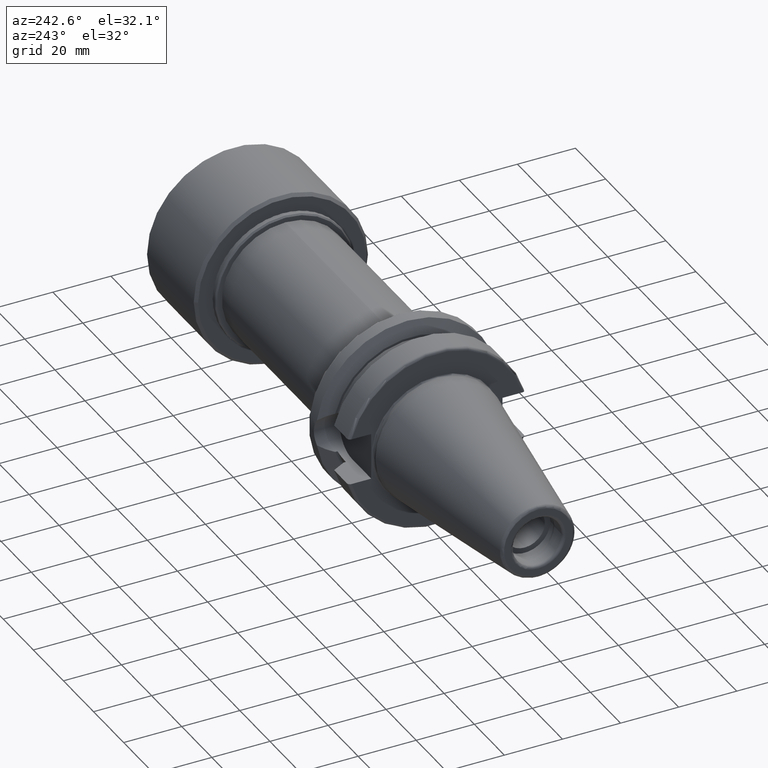
[diagram: clean part render]
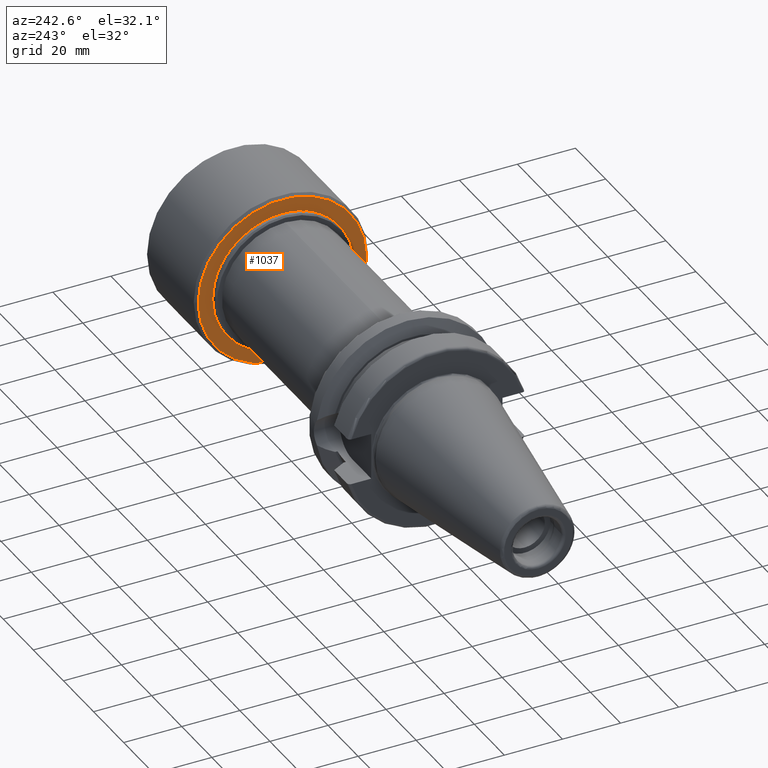
[diagram: same view with one face highlighted and labeled with its STEP entity id]
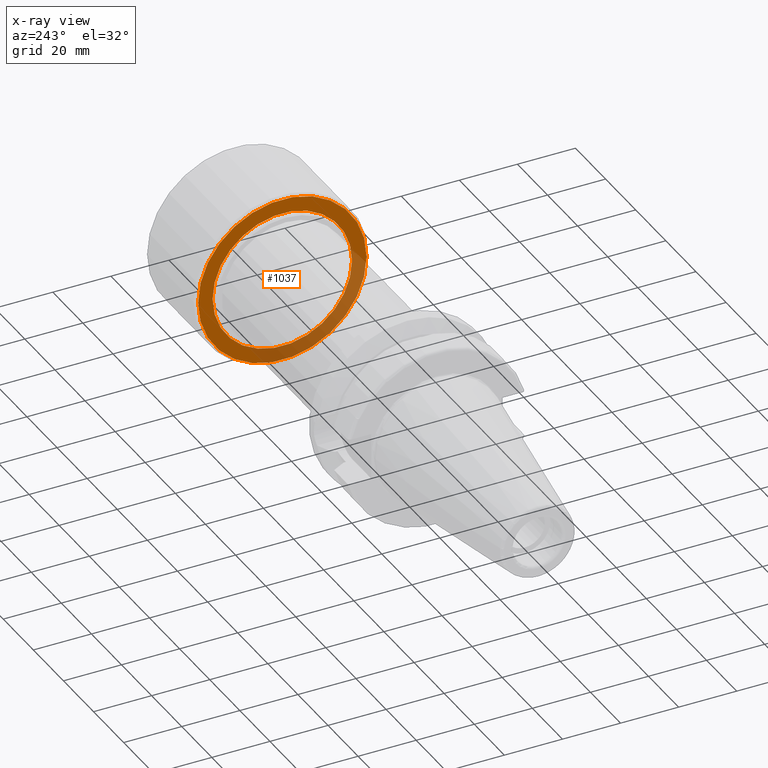
[diagram: x-ray of the same camera — body ghosted, the highlighted face saturated]
A machine part, auxiliary view. The second image highlights one B-rep face of the part: STEP entity #1037.
The next image is the same camera in x-ray: the body ghosted, the highlighted face saturated — about 31% of this face is hidden behind the body in this view.
In plain terms, the highlighted planar face has unit normal (-1, 0, 0).
Its self-contained STEP definition (entity closure, byte-faithful):
#71=FACE_BOUND('',#246,.T.);
#92=PLANE('',#1248);
#173=FACE_OUTER_BOUND('',#245,.T.);
#245=EDGE_LOOP('',(#959));
#246=EDGE_LOOP('',(#960));
#421=CIRCLE('',#1237,24.);
#427=CIRCLE('',#1247,29.);
#516=VERTEX_POINT('',#1971);
#522=VERTEX_POINT('',#1990);
#659=EDGE_CURVE('',#516,#516,#421,.T.);
#668=EDGE_CURVE('',#522,#522,#427,.T.);
#959=ORIENTED_EDGE('',*,*,#668,.F.);
#960=ORIENTED_EDGE('',*,*,#659,.T.);
#1037=ADVANCED_FACE('',(#173,#71),#92,.T.);
#1237=AXIS2_PLACEMENT_3D('',#1973,#1554,#1555);
#1247=AXIS2_PLACEMENT_3D('',#1992,#1577,#1578);
#1248=AXIS2_PLACEMENT_3D('',#1993,#1579,#1580);
#1554=DIRECTION('center_axis',(1.,0.,0.));
#1555=DIRECTION('ref_axis',(0.,1.,0.));
#1577=DIRECTION('center_axis',(1.,0.,0.));
#1578=DIRECTION('ref_axis',(0.,-1.,0.));
#1579=DIRECTION('center_axis',(-1.,0.,0.));
#1580=DIRECTION('ref_axis',(0.,0.,1.));
#1971=CARTESIAN_POINT('',(0.,-24.,2.93915231795365E-15));
#1973=CARTESIAN_POINT('Origin',(0.,0.,0.));
#1990=CARTESIAN_POINT('',(0.,29.,3.55147571752732E-15));
#1992=CARTESIAN_POINT('Origin',(0.,0.,0.));
#1993=CARTESIAN_POINT('Origin',(0.,30.,0.));